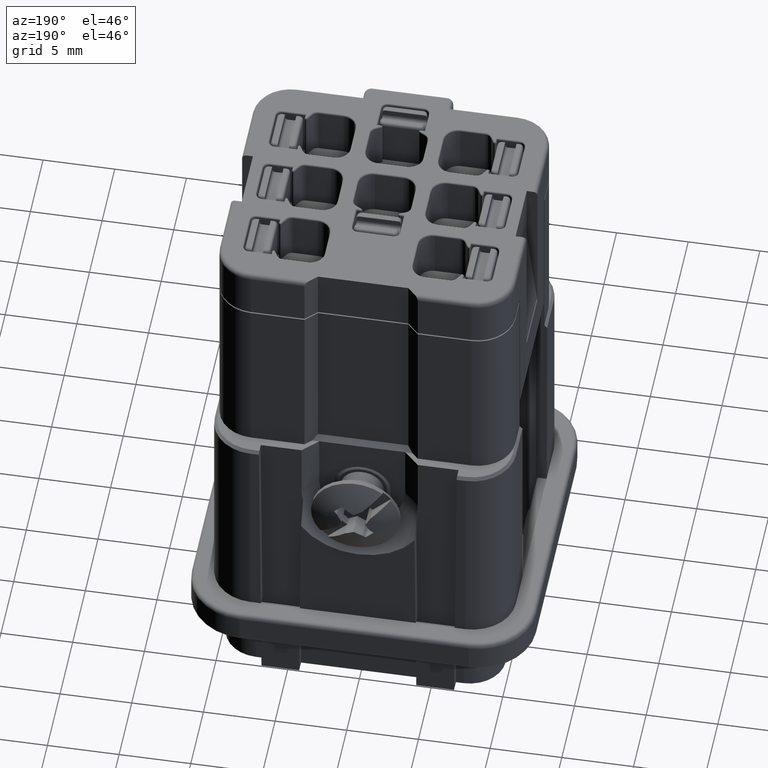
[diagram: clean part render]
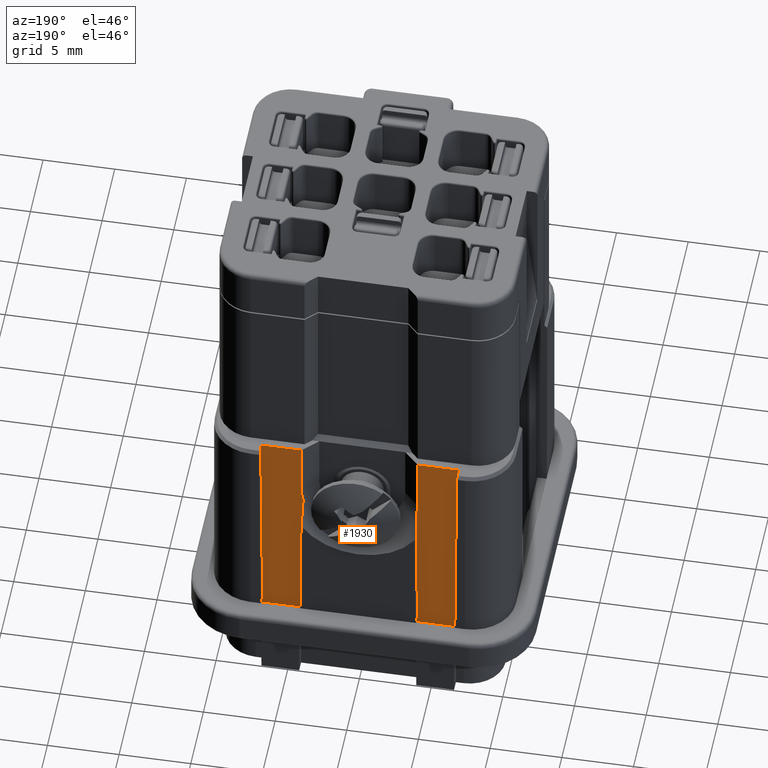
[diagram: same view with one face highlighted and labeled with its STEP entity id]
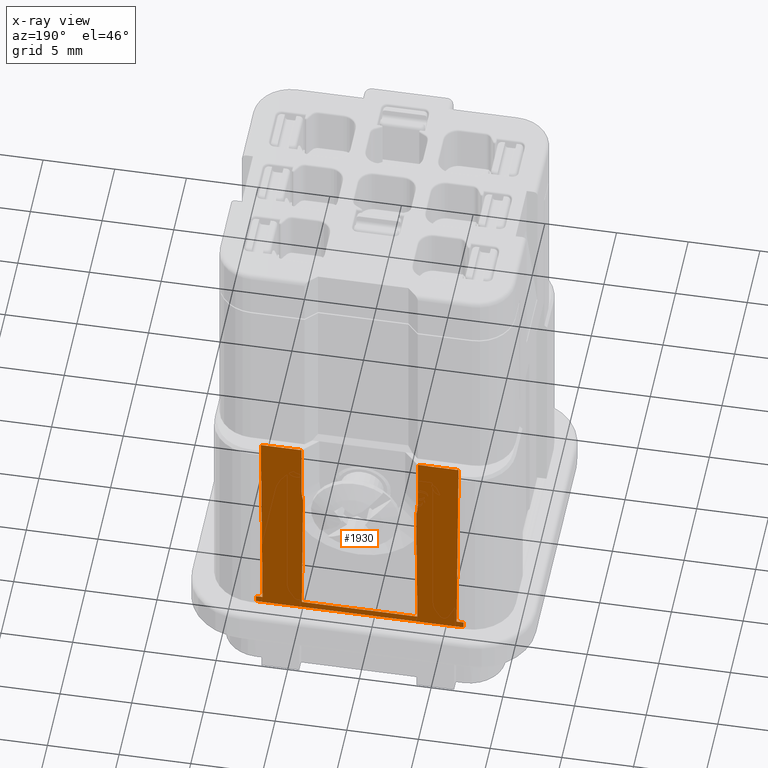
[diagram: x-ray of the same camera — body ghosted, the highlighted face saturated]
A machine part, auxiliary view. The second image highlights one B-rep face of the part: STEP entity #1930.
The next image is the same camera in x-ray: the body ghosted, the highlighted face saturated — about 0% of this face is hidden behind the body in this view.
In plain terms, the highlighted planar face has unit normal (-0, -1, -0).
Its self-contained STEP definition (entity closure, byte-faithful):
#560=CARTESIAN_POINT('',(54.034245,58.538879,41.));
#570=DIRECTION('',(-0.,-1.,-0.));
#580=DIRECTION('',(-1.,0.,0.));
#590=AXIS2_PLACEMENT_3D('',#560,#570,#580);
#600=PLANE('',#590);
#610=CARTESIAN_POINT('',(54.999337528837,58.538879,19.5));
#620=DIRECTION('',(-0.00872653549837393,0.,-0.999961923064171));
#630=VECTOR('',#620,1.);
#640=LINE('',#610,#630);
#650=CARTESIAN_POINT('',(55.1826017524429,58.538879,40.4999999999999));
#660=VERTEX_POINT('',#650);
#670=CARTESIAN_POINT('',(55.0516987355815,58.538879,25.5));
#680=VERTEX_POINT('',#670);
#690=EDGE_CURVE('',#660,#680,#640,.T.);
#700=ORIENTED_EDGE('',*,*,#690,.T.);
#710=CARTESIAN_POINT('',(39.2991534739769,58.538879,40.4999999999999));
#720=DIRECTION('',(1.,0.,0.));
#730=VECTOR('',#720,1.);
#740=LINE('',#710,#730);
#750=CARTESIAN_POINT('',(52.334245,58.538879,40.4999999999999));
#760=VERTEX_POINT('',#750);
#770=EDGE_CURVE('',#760,#660,#740,.T.);
#780=ORIENTED_EDGE('',*,*,#770,.T.);
#790=CARTESIAN_POINT('',(52.334245,58.538879,19.5));
#800=DIRECTION('',(0.,0.,-1.));
#810=VECTOR('',#800,1.);
#820=LINE('',#790,#810);
#830=CARTESIAN_POINT('',(52.334245,58.538879,36.5));
#840=VERTEX_POINT('',#830);
#850=EDGE_CURVE('',#760,#840,#820,.T.);
#860=ORIENTED_EDGE('',*,*,#850,.F.);
#870=CARTESIAN_POINT('',(48.284245,58.538879,36.5));
#880=DIRECTION('',(0.,1.,0.));
#890=DIRECTION('',(1.,0.,0.));
#900=AXIS2_PLACEMENT_3D('',#870,#880,#890);
#910=CIRCLE('',#900,4.05);
#920=CARTESIAN_POINT('',(52.228807930546,58.538879,35.5818914623194));
#930=VERTEX_POINT('',#920);
#940=EDGE_CURVE('',#840,#930,#910,.T.);
#950=ORIENTED_EDGE('',*,*,#940,.F.);
#960=CARTESIAN_POINT('',(52.369152471163,58.538879,19.5));
#970=DIRECTION('',(-0.00872653549837393,0.,0.999961923064171));
#980=VECTOR('',#970,1.);
#990=LINE('',#960,#980);
#1000=CARTESIAN_POINT('',(52.3167912644185,58.538879,25.5));
#1010=VERTEX_POINT('',#1000);
#1020=EDGE_CURVE('',#1010,#930,#990,.T.);
#1030=ORIENTED_EDGE('',*,*,#1020,.T.);
#1040=CARTESIAN_POINT('',(39.2991534739769,58.538879,25.5));
#1050=DIRECTION('',(1.,0.,0.));
#1060=VECTOR('',#1050,1.);
#1070=LINE('',#1040,#1060);
#1080=CARTESIAN_POINT('',(44.2516987355815,58.538879,25.5));
#1090=VERTEX_POINT('',#1080);
#1100=EDGE_CURVE('',#1090,#1010,#1070,.T.);
#1110=ORIENTED_EDGE('',*,*,#1100,.T.);
#1120=CARTESIAN_POINT('',(44.199337528837,58.538879,19.5));
#1130=DIRECTION('',(-0.00872653549837393,0.,-0.999961923064171));
#1140=VECTOR('',#1130,1.);
#1150=LINE('',#1120,#1140);
#1160=CARTESIAN_POINT('',(44.339682069454,58.538879,35.5818914623194));
#1170=VERTEX_POINT('',#1160);
#1180=EDGE_CURVE('',#1170,#1090,#1150,.T.);
#1190=ORIENTED_EDGE('',*,*,#1180,.T.);
#1200=CARTESIAN_POINT('',(48.284245,58.538879,36.5));
#1210=DIRECTION('',(0.,1.,0.));
#1220=DIRECTION('',(1.,0.,0.));
#1230=AXIS2_PLACEMENT_3D('',#1200,#1210,#1220);
#1240=CIRCLE('',#1230,4.05);
#1250=CARTESIAN_POINT('',(44.234245,58.538879,36.5));
#1260=VERTEX_POINT('',#1250);
#1270=EDGE_CURVE('',#1170,#1260,#1240,.T.);
#1280=ORIENTED_EDGE('',*,*,#1270,.F.);
#1290=CARTESIAN_POINT('',(44.234245,58.538879,19.5));
#1300=DIRECTION('',(0.,0.,1.));
#1310=VECTOR('',#1300,1.);
#1320=LINE('',#1290,#1310);
#1330=CARTESIAN_POINT('',(44.234245,58.538879,40.4999999999999));
#1340=VERTEX_POINT('',#1330);
#1350=EDGE_CURVE('',#1260,#1340,#1320,.T.);
#1360=ORIENTED_EDGE('',*,*,#1350,.F.);
#1370=CARTESIAN_POINT('',(39.2991534739769,58.538879,40.4999999999999));
#1380=DIRECTION('',(1.,0.,0.));
#1390=VECTOR('',#1380,1.);
#1400=LINE('',#1370,#1390);
#1410=CARTESIAN_POINT('',(41.3858882475571,58.538879,40.4999999999999));
#1420=VERTEX_POINT('',#1410);
#1430=EDGE_CURVE('',#1420,#1340,#1400,.T.);
#1440=ORIENTED_EDGE('',*,*,#1430,.T.);
#1450=CARTESIAN_POINT('',(41.569152471163,58.538879,19.5));
#1460=DIRECTION('',(-0.00872653549837393,0.,0.999961923064171));
#1470=VECTOR('',#1460,1.);
#1480=LINE('',#1450,#1470);
#1490=CARTESIAN_POINT('',(41.5167912644185,58.538879,25.5));
#1500=VERTEX_POINT('',#1490);
#1510=EDGE_CURVE('',#1500,#1420,#1480,.T.);
#1520=ORIENTED_EDGE('',*,*,#1510,.T.);
#1530=CARTESIAN_POINT('',(39.2991534739769,58.538879,25.5));
#1540=DIRECTION('',(1.,0.,0.));
#1550=VECTOR('',#1540,1.);
#1560=LINE('',#1530,#1550);
#1570=CARTESIAN_POINT('',(41.034245,58.538879,25.5));
#1580=VERTEX_POINT('',#1570);
#1590=EDGE_CURVE('',#1580,#1500,#1560,.T.);
#1600=ORIENTED_EDGE('',*,*,#1590,.T.);
#1610=CARTESIAN_POINT('',(41.034245,58.538879,41.));
#1620=DIRECTION('',(0.,0.,-1.));
#1630=VECTOR('',#1620,1.);
#1640=LINE('',#1610,#1630);
#1650=CARTESIAN_POINT('',(41.034245,58.538879,25.0070717003458));
#1660=VERTEX_POINT('',#1650);
#1670=EDGE_CURVE('',#1580,#1660,#1640,.T.);
#1680=ORIENTED_EDGE('',*,*,#1670,.F.);
#1690=CARTESIAN_POINT('',(46.8150299384485,58.538879,25.0070717003458));
#1700=DIRECTION('',(-1.,0.,0.));
#1710=VECTOR('',#1700,1.);
#1720=LINE('',#1690,#1710);
#1730=CARTESIAN_POINT('',(55.534245,58.538879,25.0070717003458));
#1740=VERTEX_POINT('',#1730);
#1750=EDGE_CURVE('',#1740,#1660,#1720,.T.);
#1760=ORIENTED_EDGE('',*,*,#1750,.T.);
#1770=CARTESIAN_POINT('',(55.534245,58.538879,41.));
#1780=DIRECTION('',(0.,0.,-1.));
#1790=VECTOR('',#1780,1.);
#1800=LINE('',#1770,#1790);
#1810=CARTESIAN_POINT('',(55.534245,58.538879,25.5));
#1820=VERTEX_POINT('',#1810);
#1830=EDGE_CURVE('',#1820,#1740,#1800,.T.);
#1840=ORIENTED_EDGE('',*,*,#1830,.T.);
#1850=CARTESIAN_POINT('',(39.2991534739769,58.538879,25.5));
#1860=DIRECTION('',(1.,0.,0.));
#1870=VECTOR('',#1860,1.);
#1880=LINE('',#1850,#1870);
#1890=EDGE_CURVE('',#680,#1820,#1880,.T.);
#1900=ORIENTED_EDGE('',*,*,#1890,.T.);
#1910=EDGE_LOOP('',(#1900,#1840,#1760,#1680,#1600,#1520,#1440,#1360,
#1280,#1190,#1110,#1030,#950,#860,#780,#700));
#1920=FACE_OUTER_BOUND('',#1910,.T.);
#1930=ADVANCED_FACE('',(#1920),#600,.F.);